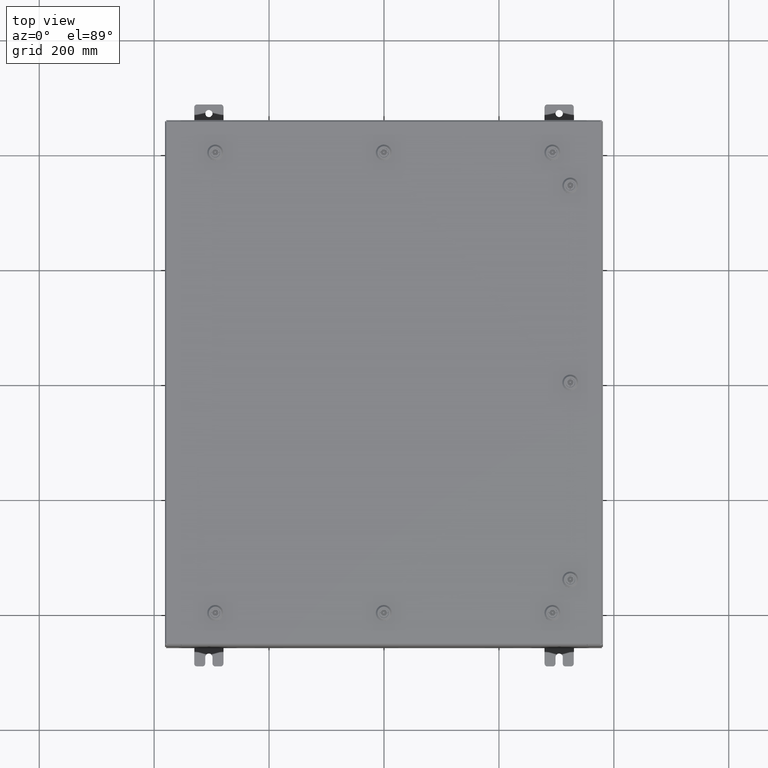
[diagram: clean part render]
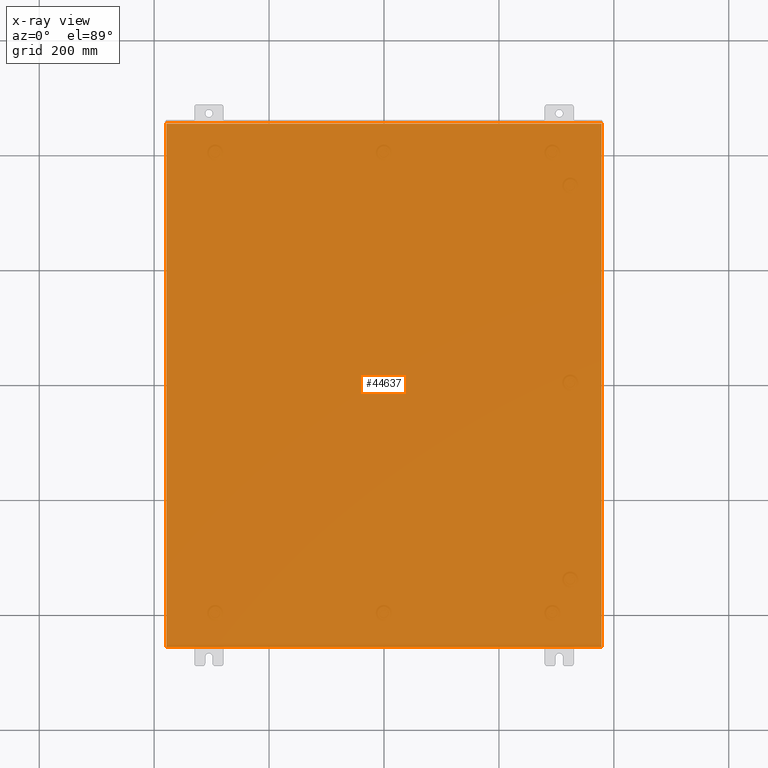
[diagram: x-ray — body ghosted, one internal face saturated and labeled with its STEP entity id]
A machine part, top view, then the same camera in x-ray: the body is ghosted and one INTERNAL B-rep face — a face not visible from any outside direction — is saturated and labeled: STEP entity #44637.
In plain terms, the highlighted planar face has unit normal (0, 0, -1).
Its self-contained STEP definition (entity closure, byte-faithful):
#2562 = VERTEX_POINT ( 'NONE', #42420 ) ;
#3186 = DIRECTION ( 'NONE',  ( -0.0000000000000000000, -1.000000000000000000, 8.208677865577646300E-017 ) ) ;
#4595 = CARTESIAN_POINT ( 'NONE',  ( -14.91230000000000200, -17.92530000000000000, 4.481938114605432000E-017 ) ) ;
#7405 = PLANE ( 'NONE',  #38084 ) ;
#7814 = LINE ( 'NONE', #38682, #45239 ) ;
#7958 = VERTEX_POINT ( 'NONE', #60427 ) ;
#13399 = CARTESIAN_POINT ( 'NONE',  ( 14.91229999999999800, 17.92530000000000000, -2.518422369159242700E-015 ) ) ;
#15235 = EDGE_LOOP ( 'NONE', ( #43599, #41233, #32452, #25753 ) ) ;
#20244 = LINE ( 'NONE', #63212, #55966 ) ;
#20366 = LINE ( 'NONE', #13399, #59237 ) ;
#20751 = DIRECTION ( 'NONE',  ( 1.000000000000000000, 0.0000000000000000000, 0.0000000000000000000 ) ) ;
#22806 = CARTESIAN_POINT ( 'NONE',  ( 0.0000000000000000000, 0.0000000000000000000, 0.0000000000000000000 ) ) ;
#25753 = ORIENTED_EDGE ( 'NONE', *, *, #35214, .T. ) ;
#26154 = VERTEX_POINT ( 'NONE', #4595 ) ;
#27931 = DIRECTION ( 'NONE',  ( 0.0000000000000000000, 0.0000000000000000000, -1.000000000000000000 ) ) ;
#29837 = LINE ( 'NONE', #51202, #31440 ) ;
#31440 = VECTOR ( 'NONE', #20751, 39.37007874015748100 ) ;
#32452 = ORIENTED_EDGE ( 'NONE', *, *, #33358, .F. ) ;
#33358 = EDGE_CURVE ( 'NONE', #2562, #7958, #20366, .T. ) ;
#35214 = EDGE_CURVE ( 'NONE', #2562, #62240, #20244, .T. ) ;
#38084 = AXIS2_PLACEMENT_3D ( 'NONE', #22806, #27931, #63329 ) ;
#38682 = CARTESIAN_POINT ( 'NONE',  ( -14.91230000000000200, -17.92530000000000000, 4.481938114605432000E-017 ) ) ;
#41233 = ORIENTED_EDGE ( 'NONE', *, *, #53426, .T. ) ;
#42420 = CARTESIAN_POINT ( 'NONE',  ( 14.91229999999999800, 17.92530000000000000, -2.518422369159242700E-015 ) ) ;
#43129 = DIRECTION ( 'NONE',  ( -1.000000000000000000, -0.0000000000000000000, -0.0000000000000000000 ) ) ;
#43599 = ORIENTED_EDGE ( 'NONE', *, *, #45949, .F. ) ;
#43813 = DIRECTION ( 'NONE',  ( -0.0000000000000000000, 1.000000000000000000, -0.0000000000000000000 ) ) ;
#44637 = ADVANCED_FACE ( 'NONE', ( #54787 ), #7405, .F. ) ;
#45239 = VECTOR ( 'NONE', #43813, 39.37007874015748100 ) ;
#45949 = EDGE_CURVE ( 'NONE', #26154, #62240, #7814, .T. ) ;
#50317 = CARTESIAN_POINT ( 'NONE',  ( -14.91230000000000200, 17.92530000000000000, 4.481938114605432000E-017 ) ) ;
#51202 = CARTESIAN_POINT ( 'NONE',  ( -15.00000000000000400, -17.92530000000000000, 0.0000000000000000000 ) ) ;
#53426 = EDGE_CURVE ( 'NONE', #26154, #7958, #29837, .T. ) ;
#54787 = FACE_OUTER_BOUND ( 'NONE', #15235, .T. ) ;
#55966 = VECTOR ( 'NONE', #43129, 39.37007874015748100 ) ;
#59237 = VECTOR ( 'NONE', #3186, 39.37007874015748100 ) ;
#60427 = CARTESIAN_POINT ( 'NONE',  ( 14.91229999999999800, -17.92530000000000000, 4.247169927649909300E-016 ) ) ;
#62240 = VERTEX_POINT ( 'NONE', #50317 ) ;
#63212 = CARTESIAN_POINT ( 'NONE',  ( -15.00000000000000400, 17.92530000000000000, 0.0000000000000000000 ) ) ;
#63329 = DIRECTION ( 'NONE',  ( -1.000000000000000000, 0.0000000000000000000, -0.0000000000000000000 ) ) ;